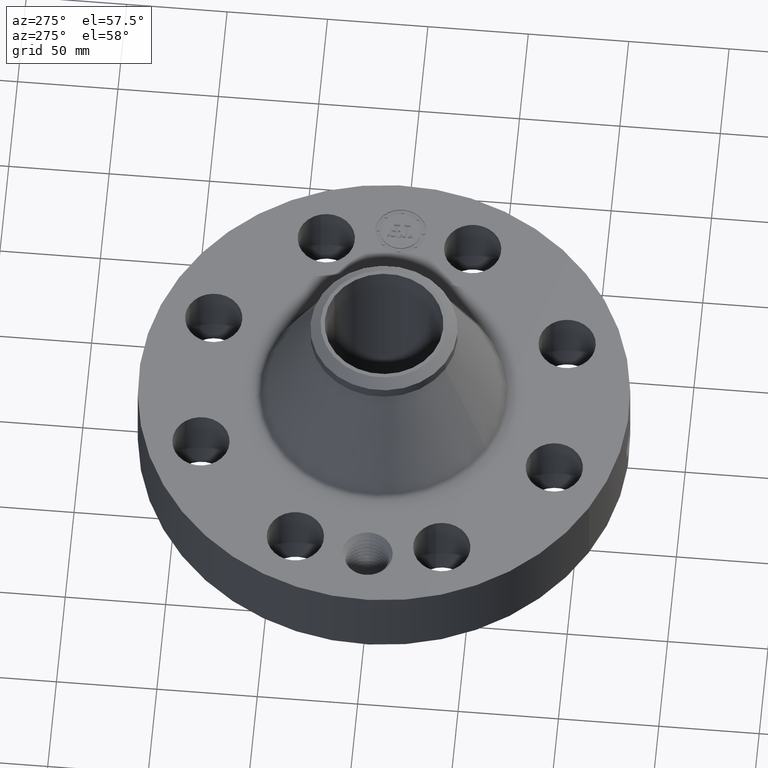
[diagram: clean part render]
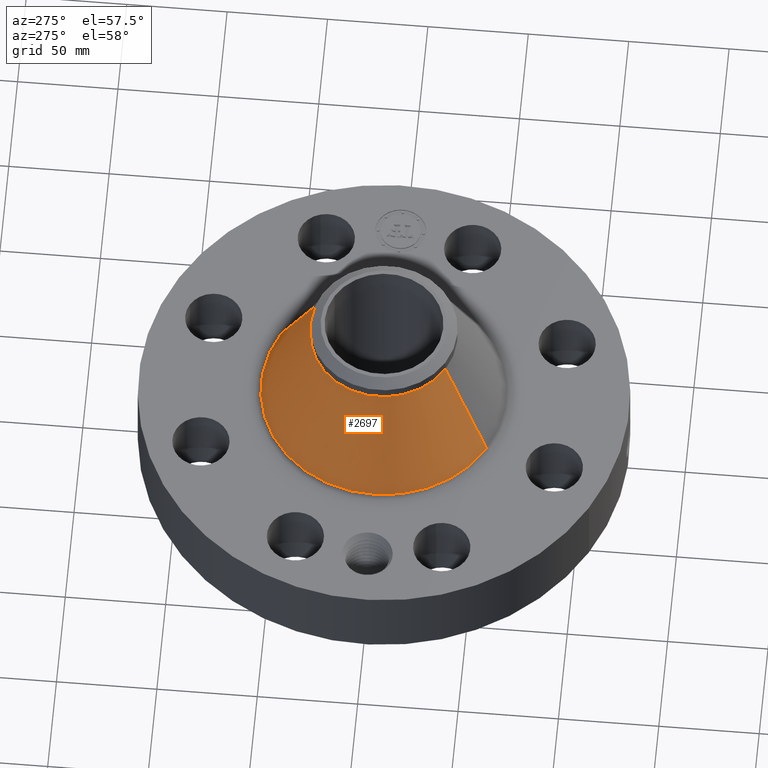
[diagram: same view with one face highlighted and labeled with its STEP entity id]
A machine part, auxiliary view. The second image highlights one B-rep face of the part: STEP entity #2697.
In plain terms, the highlighted conical surface has half-angle 25.353 deg.
Its self-contained STEP definition (entity closure, byte-faithful):
#2046=AXIS2_PLACEMENT_3D('Circle Axis2P3D',#2044,#2045,$) ;
#2658=AXIS2_PLACEMENT_3D('Cone Axis2P3D',#2655,#2656,#2657) ;
#2688=AXIS2_PLACEMENT_3D('Circle Axis2P3D',#2686,#2687,$) ;
#2022=CARTESIAN_POINT('Vertex',(1.15421101871,2.11276909801,1.93861745921)) ;
#2029=CARTESIAN_POINT('Vertex',(-1.15421101871,-2.11276909801,1.93861745921)) ;
#2044=CARTESIAN_POINT('Axis2P3D Location',(0.,0.,1.93861745921)) ;
#2655=CARTESIAN_POINT('Axis2P3D Location',(0.,0.,3.9804984093)) ;
#2660=CARTESIAN_POINT('Line Origine',(0.922291897151,1.68824399357,2.95955793425)) ;
#2664=CARTESIAN_POINT('Vertex',(0.690372775593,1.26371888913,3.9804984093)) ;
#2671=CARTESIAN_POINT('Vertex',(-0.690372775593,-1.26371888913,3.9804984093)) ;
#2674=CARTESIAN_POINT('Line Origine',(-0.922291897151,-1.68824399357,2.95955793425)) ;
#2686=CARTESIAN_POINT('Axis2P3D Location',(0.,0.,3.9804984093)) ;
#2045=DIRECTION('Axis2P3D Direction',(0.,0.,-0.0393700787402)) ;
#2656=DIRECTION('Axis2P3D Direction',(0.,0.,-0.0393700787402)) ;
#2657=DIRECTION('Axis2P3D XDirection',(-0.0188750212049,-0.0345504945626,0.)) ;
#2661=DIRECTION('Vector Direction',(0.00808205455982,0.014794101638,-0.0355783368193)) ;
#2675=DIRECTION('Vector Direction',(-0.00808205455982,-0.014794101638,-0.0355783368193)) ;
#2687=DIRECTION('Axis2P3D Direction',(0.,0.,-0.0393700787402)) ;
#2662=VECTOR('Line Direction',#2661,0.0393700787402) ;
#2676=VECTOR('Line Direction',#2675,0.0393700787402) ;
#2692=ORIENTED_EDGE('',*,*,#2048,.F.) ;
#2693=ORIENTED_EDGE('',*,*,#2678,.T.) ;
#2694=ORIENTED_EDGE('',*,*,#2690,.T.) ;
#2695=ORIENTED_EDGE('',*,*,#2666,.F.) ;
#2697=ADVANCED_FACE('PartBody',(#2696),#2659,.T.) ;
#2047=CIRCLE('generated circle',#2046,2.40748755703) ;
#2689=CIRCLE('generated circle',#2688,1.44000000001) ;
#2659=CONICAL_SURFACE('Cone',#2658,1.44000000001,0.44248653206) ;
#2048=EDGE_CURVE('',#2030,#2023,#2047,.T.) ;
#2666=EDGE_CURVE('',#2023,#2665,#2663,.F.) ;
#2678=EDGE_CURVE('',#2030,#2672,#2677,.F.) ;
#2690=EDGE_CURVE('',#2672,#2665,#2689,.T.) ;
#2691=EDGE_LOOP('',(#2692,#2693,#2694,#2695)) ;
#2696=FACE_OUTER_BOUND('',#2691,.T.) ;
#2663=LINE('Line',#2660,#2662) ;
#2677=LINE('Line',#2674,#2676) ;
#2023=VERTEX_POINT('',#2022) ;
#2030=VERTEX_POINT('',#2029) ;
#2665=VERTEX_POINT('',#2664) ;
#2672=VERTEX_POINT('',#2671) ;